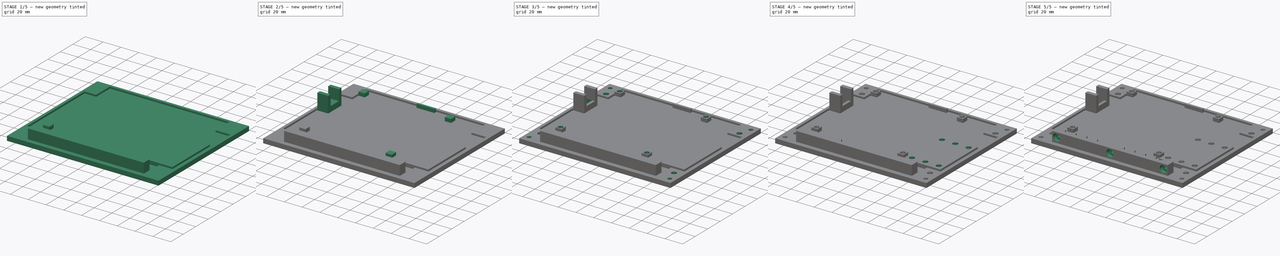
[diagram: build sequence overview — one tinted view per stage of 5, left to right]
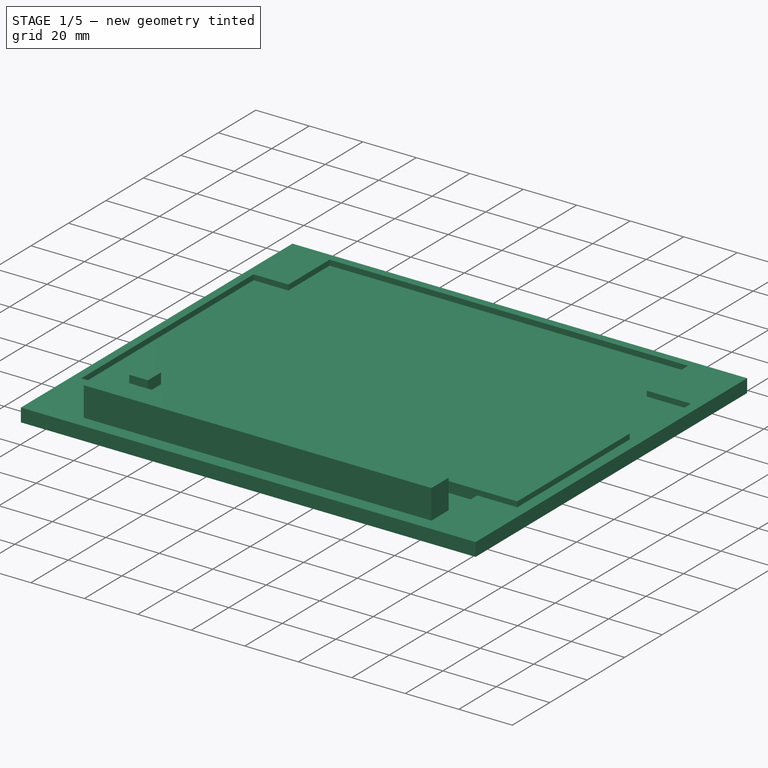
[diagram: stage 1 of 5 — iso view after this stage's code; geometry added in this stage tinted green]
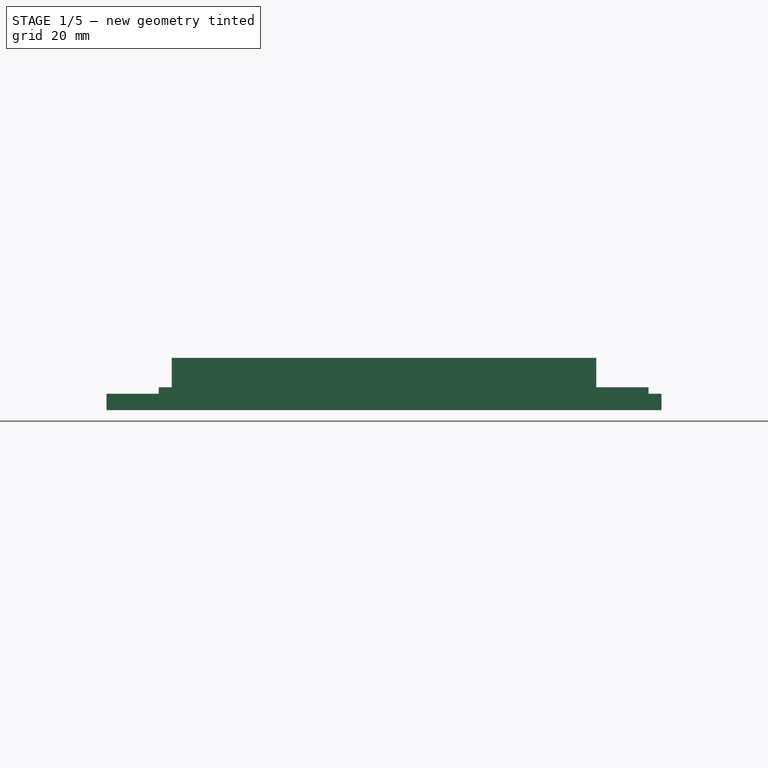
[diagram: stage 1 of 5 — front view after this stage's code; geometry added in this stage tinted green]
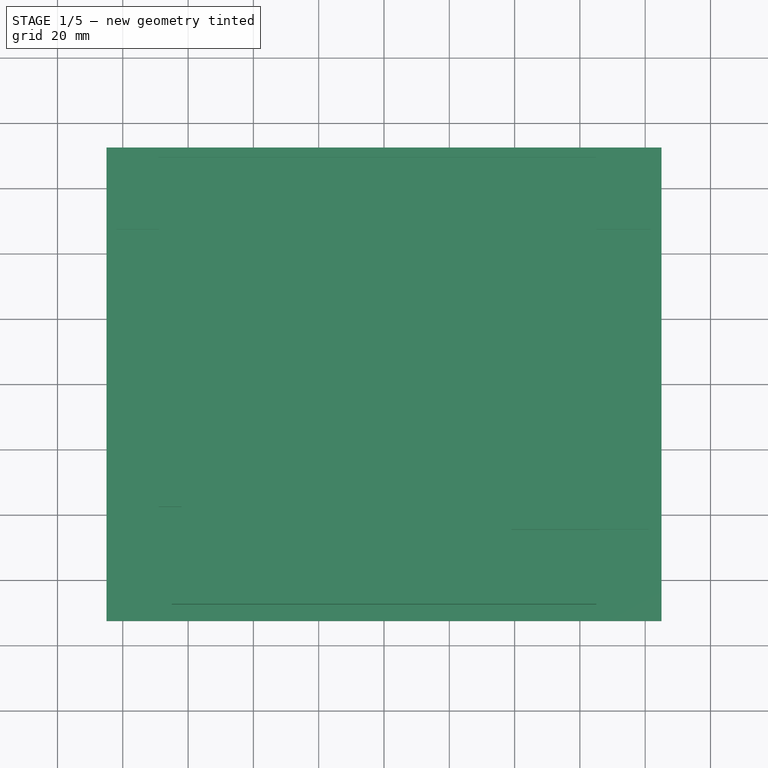
[diagram: stage 1 of 5 — top view after this stage's code; geometry added in this stage tinted green]
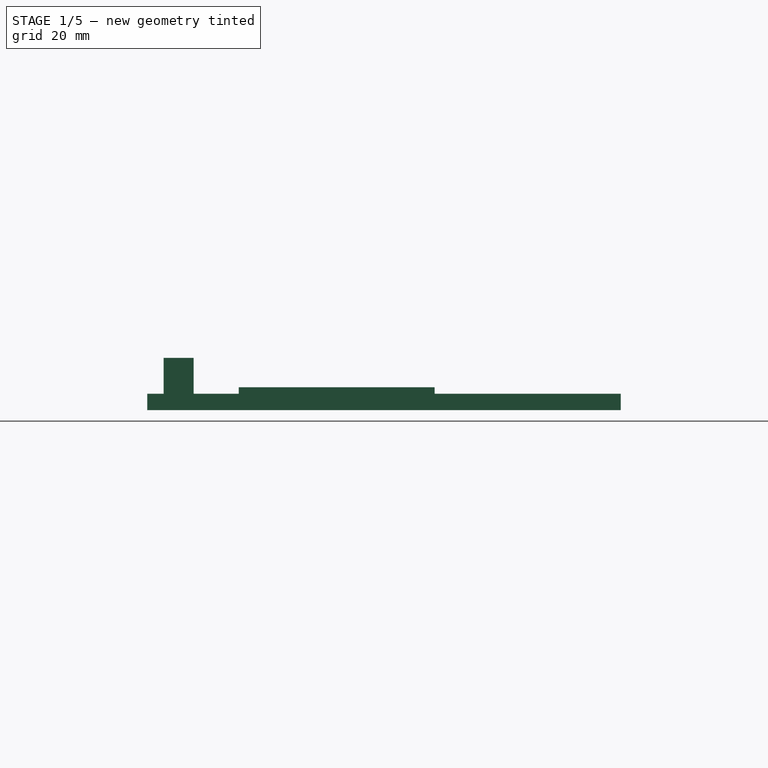
[diagram: stage 1 of 5 — right view after this stage's code; geometry added in this stage tinted green]
FCSTD DOCUMENT
Label: ElectronicEnclosureBottom_unfinished
objects: Sketcher::SketchObject×17, PartDesign::Pocket×9, PartDesign::LinearPattern×9, PartDesign::Pad×8, PartDesign::MultiTransform×6, PartDesign::Mirrored×5, Part::Feature×1
note: 72 computed .brp shape members not serialized (recipe doc carries the construction recipe); baked Part::Feature solids carry a one-line shape summary decoded from their .brp

FEATURE [Sketcher::SketchObject] Sketch
  sketch-geometry (5):
    g0: LineSegment StartX=-85 StartY=-72.5 StartZ=0 EndX=85 EndY=-72.5 EndZ=0
    g1: LineSegment StartX=85 StartY=-72.5 StartZ=0 EndX=85 EndY=72.5 EndZ=0
    g2: LineSegment StartX=85 StartY=72.5 StartZ=0 EndX=-85 EndY=72.5 EndZ=0
    g3: LineSegment StartX=-85 StartY=72.5 StartZ=0 EndX=-85 EndY=-72.5 EndZ=0
    g4: GeomPoint [constr] X=0 Y=0 Z=0
  constraints (12):
    c: Coincident(g0,g1)
    c: Coincident(g1,g2)
    c: Coincident(g2,g3)
    c: Coincident(g3,g0)
    c: Horizontal(g0)
    c: Horizontal(g2)
    c: Vertical(g1)
    c: Vertical(g3)
    c: Symmetric(g0,g1,g4)
    c: Coincident(g4,g-1)
    c: DistanceX(g2) = -170
    c: DistanceY(g1) = 145
FEATURE [PartDesign::Pad] Pad
  Length = 5
  Length2 = 100
  Sketch = -> Sketch
  Type = 0
FEATURE [Sketcher::SketchObject] Sketch001
  ExternalGeometry = -> [Pad]
  Placement = pos=(0,0,5) rot=(0,0,1;0rad)
  Support = -> Pad [Face6]
  sketch-geometry (4):
    g0: LineSegment StartX=39 StartY=15.5 StartZ=0 EndX=81 EndY=15.5 EndZ=0
    g1: LineSegment StartX=81 StartY=15.5 StartZ=0 EndX=81 EndY=-44.5 EndZ=0
    g2: LineSegment StartX=81 StartY=-44.5 StartZ=0 EndX=39 EndY=-44.5 EndZ=0
    g3: LineSegment StartX=39 StartY=-44.5 StartZ=0 EndX=39 EndY=15.5 EndZ=0
  constraints (12):
    c: Coincident(g0,g1)
    c: Coincident(g1,g2)
    c: Coincident(g2,g3)
    c: Coincident(g3,g0)
    c: Horizontal(g0)
    c: Horizontal(g2)
    c: Vertical(g1)
    c: Vertical(g3)
    c: DistanceY(g1) = -60
    c: DistanceX(g2) = -42
    c: DistanceY(g1,g-3) = -28
    c: DistanceX(g1,g-3) = 4
FEATURE [PartDesign::Pad] Pad001
  Length = 2
  Length2 = 100
  Sketch = -> Sketch001
  Type = 0
FEATURE [Sketcher::SketchObject] Sketch002
  ExternalGeometry = -> [Pad001]
  Placement = pos=(0,0,5) rot=(0,0,1;0rad)
  Support = -> Pad001 [Face5]
  sketch-geometry (14):
    g0: LineSegment StartX=-69 StartY=69.5 StartZ=0 EndX=65 EndY=69.5 EndZ=0
    g1: LineSegment StartX=81.5 StartY=47.5 StartZ=0 EndX=81.5 EndY=15.5 EndZ=0
    g2: LineSegment StartX=66 StartY=-58.3 StartZ=0 EndX=-66 EndY=-58.3 EndZ=0
    g3: LineSegment StartX=-82 StartY=-44.5 StartZ=0 EndX=-82 EndY=47.5 EndZ=0
    g4: LineSegment StartX=-69 StartY=69.5 StartZ=0 EndX=-69 EndY=47.5 EndZ=0
    g5: LineSegment StartX=-69 StartY=47.5 StartZ=0 EndX=-82 EndY=47.5 EndZ=0
    g6: LineSegment StartX=81.5 StartY=47.5 StartZ=0 EndX=65 EndY=47.5 EndZ=0
    g7: LineSegment StartX=65 StartY=47.5 StartZ=0 EndX=65 EndY=69.5 EndZ=0
    g8: LineSegment StartX=-82 StartY=-44.5 StartZ=0 EndX=-66 EndY=-44.5 EndZ=0
    g9: LineSegment StartX=-66 StartY=-44.5 StartZ=0 EndX=-66 EndY=-58.3 EndZ=0
    g10: LineSegment StartX=66 StartY=-44.5 StartZ=0 EndX=39 EndY=-44.5 EndZ=0
    g11: LineSegment StartX=66 StartY=-58.3 StartZ=0 EndX=66 EndY=-44.5 EndZ=0
    g12: LineSegment StartX=81.5 StartY=15.5 StartZ=0 EndX=39 EndY=15.5 EndZ=0
    g13: LineSegment StartX=39 StartY=15.5 StartZ=0 EndX=39 EndY=-44.5 EndZ=0
  constraints (41):
    c: Horizontal(g0)
    c: Horizontal(g2)
    c: Vertical(g1)
    c: Vertical(g3)
    c: Coincident(g4,g5)
    c: Horizontal(g5)
    c: Vertical(g4)
    c: Coincident(g6,g7)
    c: Horizontal(g6)
    c: Vertical(g7)
    c: Coincident(g8,g9)
    c: Horizontal(g8)
    c: Vertical(g9)
    c: Coincident(g11,g10)
    c: Vertical(g11)
    c: Coincident(g0,g4)
    c: Coincident(g3,g5)
    c: Coincident(g3,g8)
    c: Coincident(g9,g2)
    c: Coincident(g2,g11)
    c: Coincident(g6,g1)
    c: Coincident(g0,g7)
    c: Symmetric(g2,g2,g-2)
    c: DistanceY(g2,g-4) = -14.2
    c: DistanceX(g2,g-4) = -19
    c: DistanceX(g0,g-3) = -16
    c: DistanceX(g3,g-3) = -3
    c: DistanceX(g1,g-4) = 3.5
    c: Equal(g11,g9)
    c: Equal(g4,g7)
    c: DistanceY(g4,g-3) = 25
    c: DistanceY(g-4,g3) = 28
    c: DistanceY(g0,g-3) = 3
    c: Coincident(g1,g12)
    c: Coincident(g12,g-5)
    c: Horizontal(g12)
    c: Coincident(g12,g13)
    c: Vertical(g13)
    c: Coincident(g10,g13)
    c: Horizontal(g10)
    c: DistanceX(g-4,g0) = -20
FEATURE [PartDesign::Pocket] Pocket
  Length = 2
  Sketch = -> Sketch002
  Type = 0
FEATURE [Sketcher::SketchObject] Sketch003
  ExternalGeometry = -> [Pocket]
  Placement = pos=(0,0,5) rot=(0,0,1;0rad)
  Support = -> Pocket [Face5]
  sketch-geometry (4):
    g0: LineSegment StartX=-65 StartY=-58.3 StartZ=0 EndX=65 EndY=-58.3 EndZ=0
    g1: LineSegment StartX=65 StartY=-58.3 StartZ=0 EndX=65 EndY=-67.5 EndZ=0
    g2: LineSegment StartX=65 StartY=-67.5 StartZ=0 EndX=-65 EndY=-67.5 EndZ=0
    g3: LineSegment StartX=-65 StartY=-67.5 StartZ=0 EndX=-65 EndY=-58.3 EndZ=0
  constraints (12):
    c: Coincident(g0,g1)
    c: Coincident(g1,g2)
    c: Coincident(g2,g3)
    c: Coincident(g3,g0)
    c: Horizontal(g0)
    c: Horizontal(g2)
    c: Vertical(g1)
    c: Vertical(g3)
    c: DistanceY(g3) = 9.2
    c: DistanceX(g2) = -130
    c: Symmetric(g2,g1,g-2)
    c: PointOnObject(g-3,g0)
FEATURE [PartDesign::Pad] Pad002
  Length = 11
  Length2 = 100
  Sketch = -> Sketch003
  Type = 0
FEATURE [Sketcher::SketchObject] Sketch004
  ExternalGeometry = -> [Pad002]
  Placement = pos=(0,0,3) rot=(0,0,1;0rad)
  Support = -> Pad002 [Face28]
  sketch-geometry (4):
    g0: LineSegment StartX=-69 StartY=-37.5 StartZ=0 EndX=-62 EndY=-37.5 EndZ=0
    g1: LineSegment StartX=-62 StartY=-37.5 StartZ=0 EndX=-62 EndY=-30.5 EndZ=0
    g2: LineSegment StartX=-62 StartY=-30.5 StartZ=0 EndX=-69 EndY=-30.5 EndZ=0
    g3: LineSegment StartX=-69 StartY=-30.5 StartZ=0 EndX=-69 EndY=-37.5 EndZ=0
  constraints (12):
    c: Coincident(g0,g1)
    c: Coincident(g1,g2)
    c: Coincident(g2,g3)
    c: Coincident(g3,g0)
    c: Horizontal(g0)
    c: Horizontal(g2)
    c: Vertical(g1)
    c: Vertical(g3)
    c: Equal(g3,g2)
    c: DistanceY(g1) = 7
    c: DistanceY(g-3,g0) = 35
    c: DistanceX(g0,g-3) = -16
FEATURE [PartDesign::Pad] Pad003
  Length = 4
  Length2 = 100
  Sketch = -> Sketch004
  Type = 0
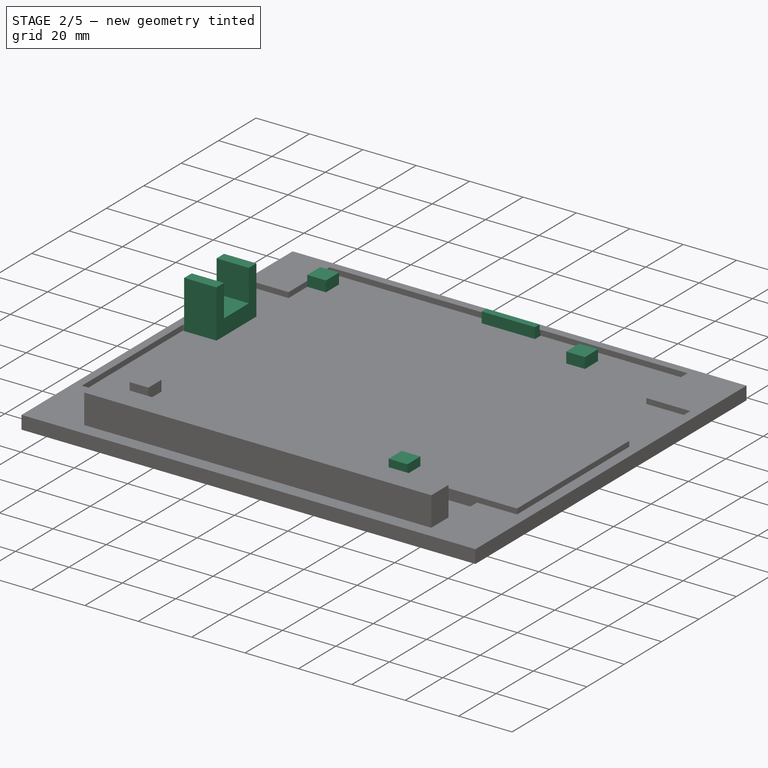
[diagram: stage 2 of 5 — iso view after this stage's code; geometry added in this stage tinted green]
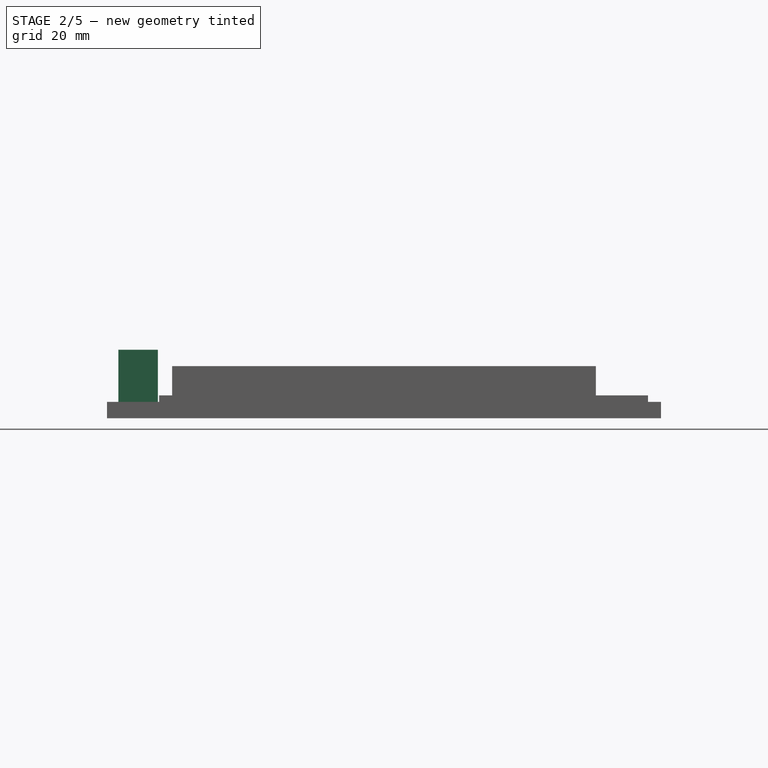
[diagram: stage 2 of 5 — front view after this stage's code; geometry added in this stage tinted green]
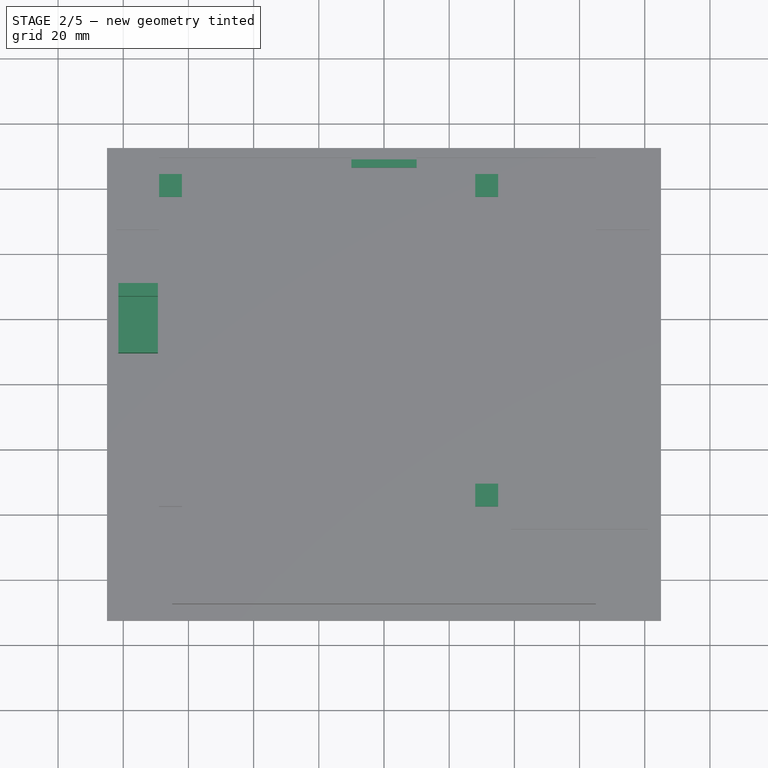
[diagram: stage 2 of 5 — top view after this stage's code; geometry added in this stage tinted green]
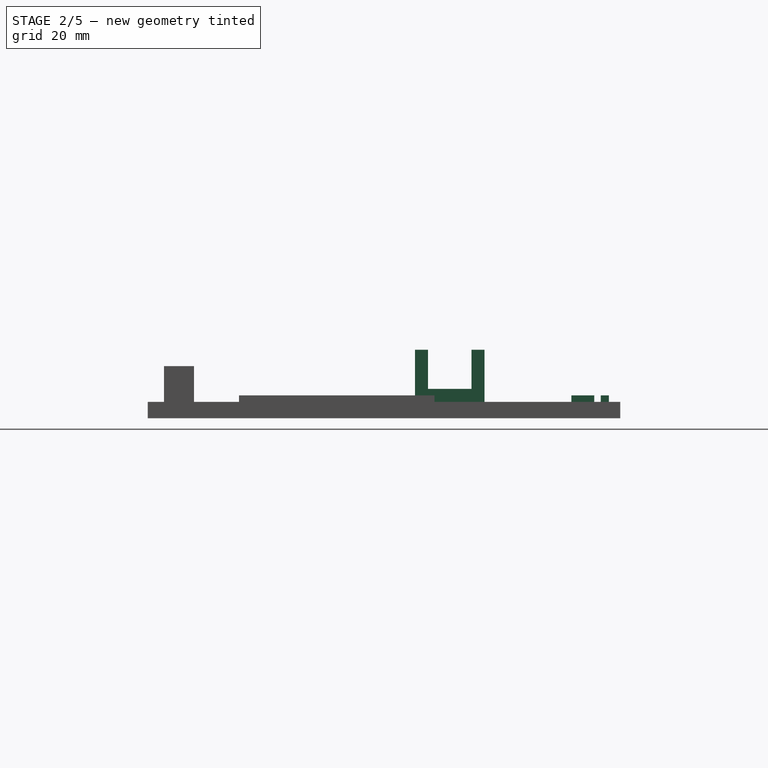
[diagram: stage 2 of 5 — right view after this stage's code; geometry added in this stage tinted green]
FEATURE [PartDesign::LinearPattern] LinearPattern
  Direction = -> Pad003 [Edge27]
  Length = 95
  Occurrences = 2
FEATURE [PartDesign::LinearPattern] LinearPattern001
  Length = 97
  Occurrences = 2
  StdDirection = X
FEATURE [PartDesign::MultiTransform] MultiTransform
  Originals = -> [Pad003]
  Transformations = -> [LinearPattern,LinearPattern001]
FEATURE [Sketcher::SketchObject] Sketch005
  ExternalGeometry = -> [MultiTransform]
  Placement = pos=(0,0,5) rot=(0,0,1;0rad)
  Support = -> MultiTransform [Face5]
  sketch-geometry (4):
    g0: LineSegment StartX=-10 StartY=69.5 StartZ=0 EndX=10 EndY=69.5 EndZ=0
    g1: LineSegment StartX=10 StartY=69.5 StartZ=0 EndX=10 EndY=66.5 EndZ=0
    g2: LineSegment StartX=10 StartY=66.5 StartZ=0 EndX=-10 EndY=66.5 EndZ=0
    g3: LineSegment StartX=-10 StartY=66.5 StartZ=0 EndX=-10 EndY=69.5 EndZ=0
  constraints (12):
    c: Coincident(g0,g1)
    c: Coincident(g1,g2)
    c: Coincident(g2,g3)
    c: Coincident(g3,g0)
    c: Horizontal(g0)
    c: Horizontal(g2)
    c: Vertical(g1)
    c: Vertical(g3)
    c: Symmetric(g2,g1,g-2)
    c: DistanceY(g3) = 3
    c: DistanceX(g2) = -20
    c: PointOnObject(g0,g-3)
FEATURE [PartDesign::Pad] Pad004
  Length = 10
  Length2 = 100
  Reversed = true
  Sketch = -> Sketch005
  Type = 1
FEATURE [Sketcher::SketchObject] Sketch006
  ExternalGeometry = -> [Pad004]
  Placement = pos=(0,0,5) rot=(0,0,1;0rad)
  Support = -> Pad004 [Face18]
  sketch-geometry (4):
    g0: LineSegment StartX=-10 StartY=66.5 StartZ=0 EndX=10 EndY=66.5 EndZ=0
    g1: LineSegment StartX=10 StartY=66.5 StartZ=0 EndX=10 EndY=69 EndZ=0
    g2: LineSegment StartX=10 StartY=69 StartZ=0 EndX=-10 EndY=69 EndZ=0
    g3: LineSegment StartX=-10 StartY=69 StartZ=0 EndX=-10 EndY=66.5 EndZ=0
  constraints (11):
    c: Coincident(g0,g1)
    c: Coincident(g1,g2)
    c: Coincident(g2,g3)
    c: Coincident(g3,g0)
    c: Horizontal(g0)
    c: Horizontal(g2)
    c: Vertical(g1)
    c: Vertical(g3)
    c: Symmetric(g0,g0,g-2)
    c: Coincident(g0,g-3)
    c: DistanceY(g1) = 2.5
FEATURE [PartDesign::Pad] Pad005
  Length = 2
  Length2 = 100
  Sketch = -> Sketch006
  Type = 0
FEATURE [Sketcher::SketchObject] Sketch007
  ExternalGeometry = -> [Pad005]
  Placement = pos=(0,0,5) rot=(0,0,1;0rad)
  Support = -> Pad005 [Face5]
  sketch-geometry (4):
    g0: LineSegment StartX=-82 StartY=30.83 StartZ=0 EndX=-81.5 EndY=30.83 EndZ=0
    g1: LineSegment StartX=-81.5 StartY=30.83 StartZ=0 EndX=-81.5 EndY=9.5 EndZ=0
    g2: LineSegment StartX=-81.5 StartY=9.5 StartZ=0 EndX=-82 EndY=9.5 EndZ=0
    g3: LineSegment StartX=-82 StartY=9.5 StartZ=0 EndX=-82 EndY=30.83 EndZ=0
  constraints (12):
    c: Coincident(g0,g1)
    c: Coincident(g1,g2)
    c: Coincident(g2,g3)
    c: Coincident(g3,g0)
    c: Horizontal(g0)
    c: Horizontal(g2)
    c: Vertical(g1)
    c: Vertical(g3)
    c: PointOnObject(g0,g-3)
    c: DistanceX(g0) = 0.5
    c: DistanceY(g1) = -21.33
    c: DistanceY(g0,g-3) = 16.67
FEATURE [PartDesign::Pad] Pad006
  Length = 10
  Length2 = 100
  Reversed = true
  Sketch = -> Sketch007
  Type = 1
FEATURE [Sketcher::SketchObject] Sketch008
  ExternalGeometry = -> [Pad006]
  Placement = pos=(-81.5,0,0) rot=(0.57735,0.57735,0.57735;2.0944rad)
  Support = -> Pad006 [Face46]
  sketch-geometry (8):
    g0: LineSegment StartX=9.5 StartY=3 StartZ=0 EndX=30.83 EndY=3 EndZ=0
    g1: LineSegment StartX=13.5 StartY=9 StartZ=0 EndX=13.5 EndY=21 EndZ=0
    g2: LineSegment StartX=13.5 StartY=21 StartZ=0 EndX=9.5 EndY=21 EndZ=0
    g3: LineSegment StartX=9.5 StartY=21 StartZ=0 EndX=9.5 EndY=3 EndZ=0
    g4: LineSegment StartX=26.83 StartY=9 StartZ=0 EndX=26.83 EndY=21 EndZ=0
    g5: LineSegment StartX=26.83 StartY=21 StartZ=0 EndX=30.83 EndY=21 EndZ=0
    g6: LineSegment StartX=30.83 StartY=21 StartZ=0 EndX=30.83 EndY=3 EndZ=0
    g7: LineSegment StartX=13.5 StartY=9 StartZ=0 EndX=26.83 EndY=9 EndZ=0
  constraints (23):
    c: Coincident(g1,g2)
    c: Coincident(g2,g3)
    c: Coincident(g3,g0)
    c: Horizontal(g0)
    c: Horizontal(g2)
    c: Vertical(g1)
    c: Vertical(g3)
    c: Coincident(g4,g5)
    c: Coincident(g5,g6)
    c: Horizontal(g5)
    c: Vertical(g4)
    c: Vertical(g6)
    c: Equal(g2,g5)
    c: DistanceX(g2) = -4
    c: DistanceY(g6) = -18
    c: Coincident(g6,g0)
    c: Coincident(g7,g1)
    c: Coincident(g7,g4)
    c: Horizontal(g7)
    c: Equal(g3,g6)
    c: Coincident(g0,g-3)
    c: Coincident(g0,g-4)
    c: DistanceY(g1,g0) = -6
FEATURE [PartDesign::Pad] Pad007
  Length = 12.1
  Length2 = 100
  Sketch = -> Sketch008
  Type = 0
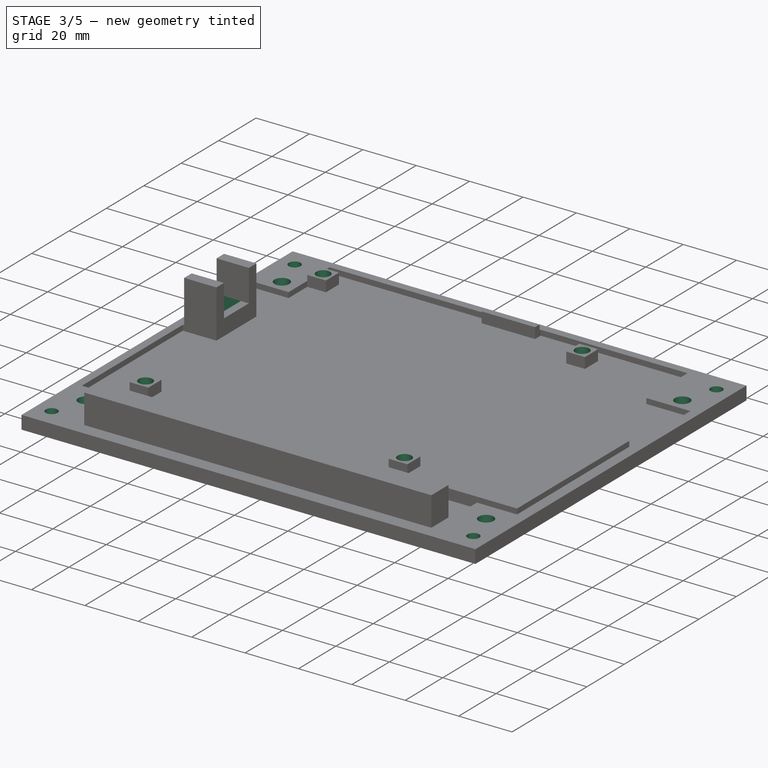
[diagram: stage 3 of 5 — iso view after this stage's code; geometry added in this stage tinted green]
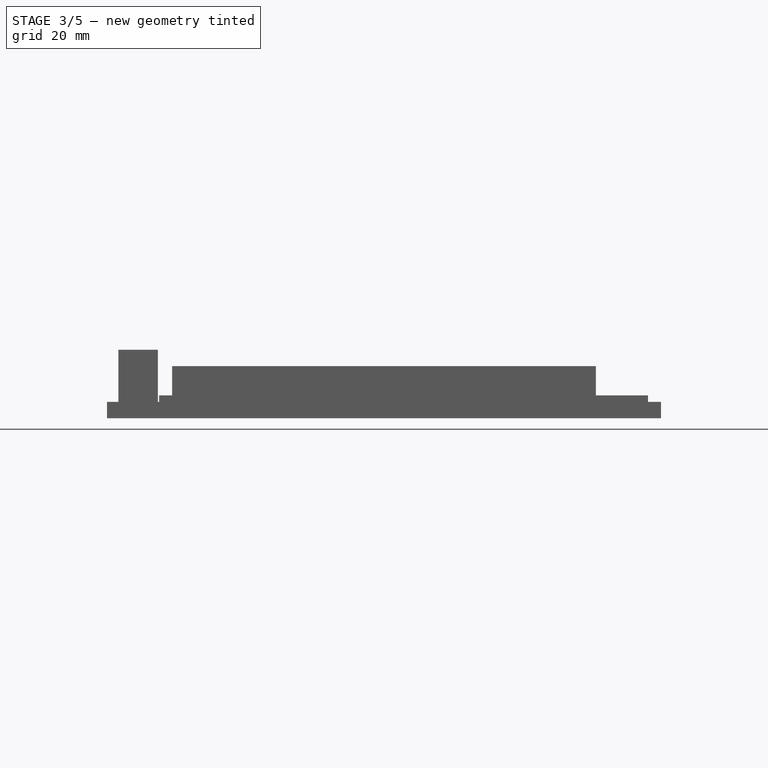
[diagram: stage 3 of 5 — front view after this stage's code; geometry added in this stage tinted green]
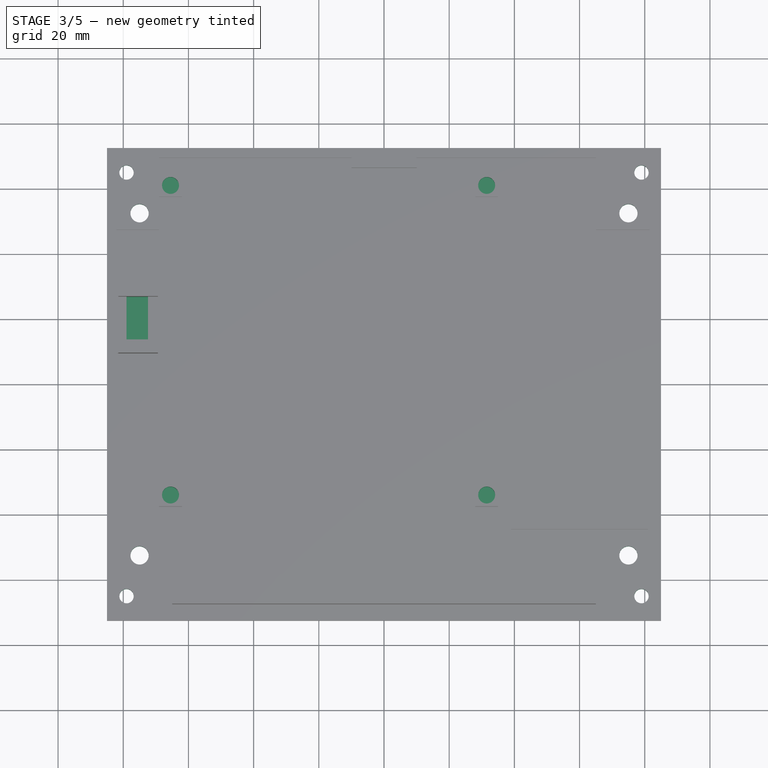
[diagram: stage 3 of 5 — top view after this stage's code; geometry added in this stage tinted green]
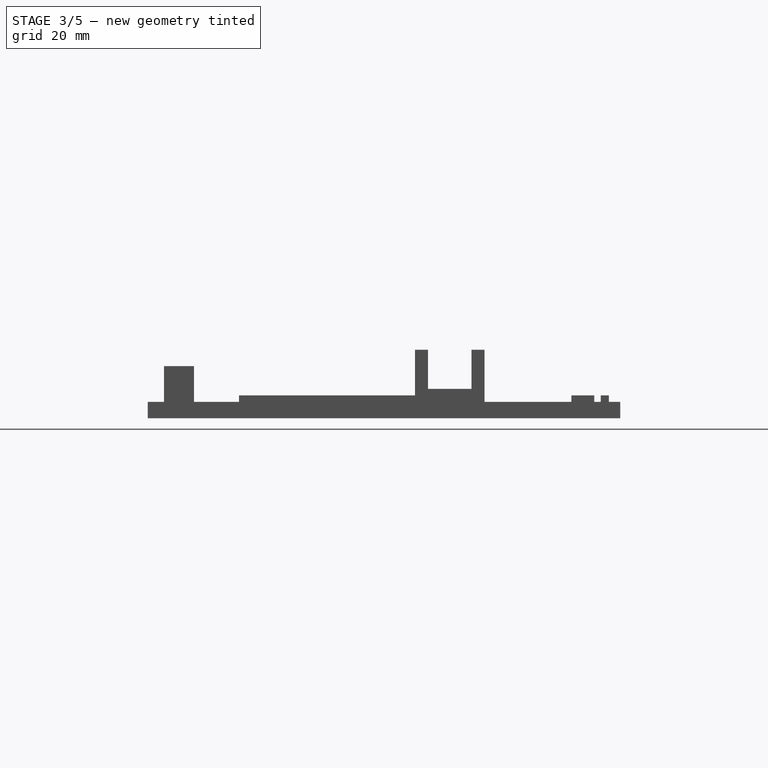
[diagram: stage 3 of 5 — right view after this stage's code; geometry added in this stage tinted green]
FEATURE [Sketcher::SketchObject] Sketch009
  ExternalGeometry = -> [Pad007]
  Placement = pos=(0,0,9) rot=(0,0,1;0rad)
  Support = -> Pad007 [Face71]
  sketch-geometry (4):
    g0: LineSegment StartX=-79 StartY=13.5 StartZ=0 EndX=-72.4 EndY=13.5 EndZ=0
    g1: LineSegment StartX=-72.4 StartY=13.5 StartZ=0 EndX=-72.4 EndY=26.83 EndZ=0
    g2: LineSegment StartX=-72.4 StartY=26.83 StartZ=0 EndX=-79 EndY=26.83 EndZ=0
    g3: LineSegment StartX=-79 StartY=26.83 StartZ=0 EndX=-79 EndY=13.5 EndZ=0
  constraints (12):
    c: Coincident(g0,g1)
    c: Coincident(g1,g2)
    c: Coincident(g2,g3)
    c: Coincident(g3,g0)
    c: Horizontal(g0)
    c: Horizontal(g2)
    c: Vertical(g1)
    c: Vertical(g3)
    c: PointOnObject(g-3,g2)
    c: PointOnObject(g-3,g0)
    c: DistanceX(g2,g-3) = -2.5
    c: DistanceX(g1,g-4) = 3
FEATURE [PartDesign::Pocket] Pocket001
  Length = 6
  Sketch = -> Sketch009
  Type = 0
  UpToFace = -> Pad007 [Face32]
FEATURE [Sketcher::SketchObject] Sketch010
  ExternalGeometry = -> [Pocket001]
  Placement = pos=(0,0,7) rot=(0,0,1;0rad)
  Support = -> Pocket001 [Face74]
  sketch-geometry (1):
    g0: Circle CenterX=-65.5 CenterY=-34 CenterZ=0 NormalX=0 NormalY=0 NormalZ=1 Radius=2.6
  constraints (2):
    c: Symmetric(g-3,g-4,g0)
    c: Radius(g0) = 2.6
FEATURE [PartDesign::Pocket] Pocket002
  Length = 6
  Sketch = -> Sketch010
  Type = 0
FEATURE [PartDesign::LinearPattern] LinearPattern002
  Direction = -> Pocket002 [Edge32]
  Length = 95
  Occurrences = 2
FEATURE [PartDesign::LinearPattern] LinearPattern003
  Length = 97
  Occurrences = 2
  StdDirection = X
FEATURE [PartDesign::MultiTransform] MultiTransform001
  Originals = -> [Pocket002]
  Transformations = -> [LinearPattern002,LinearPattern003]
FEATURE [Sketcher::SketchObject] Sketch011
  ExternalGeometry = -> [MultiTransform001]
  Placement = pos=(0,0,0) rot=(1,0,0;3.14159rad)
  Support = -> MultiTransform001 [Face4]
  sketch-geometry (2):
    g0: Circle CenterX=-79 CenterY=65 CenterZ=0 NormalX=0 NormalY=0 NormalZ=1 Radius=2.2
    g1: Circle CenterX=-75 CenterY=52.5 CenterZ=0 NormalX=0 NormalY=0 NormalZ=1 Radius=2.8
  constraints (6):
    c: Radius(g0) = 2.2
    c: Radius(g1) = 2.8
    c: DistanceY(g-3,g0) = -7.5
    c: DistanceX(g0,g-3) = -6
    c: DistanceY(g-3,g1) = -20
    c: DistanceX(g1,g-3) = -10
FEATURE [PartDesign::Pocket] Pocket003
  Length = 5
  Sketch = -> Sketch011
  Type = 1
FEATURE [PartDesign::Mirrored] Mirrored
  StdMirrorPlane = XZ
FEATURE [PartDesign::Mirrored] Mirrored001
  StdMirrorPlane = YZ
FEATURE [PartDesign::MultiTransform] MultiTransform002
  Originals = -> [Pocket003]
  Transformations = -> [Mirrored,Mirrored001]
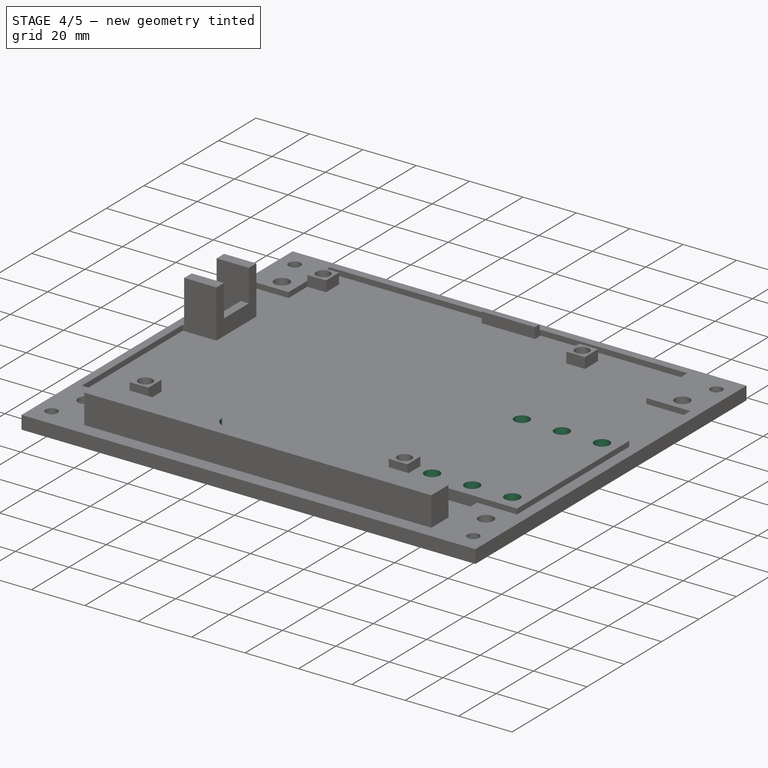
[diagram: stage 4 of 5 — iso view after this stage's code; geometry added in this stage tinted green]
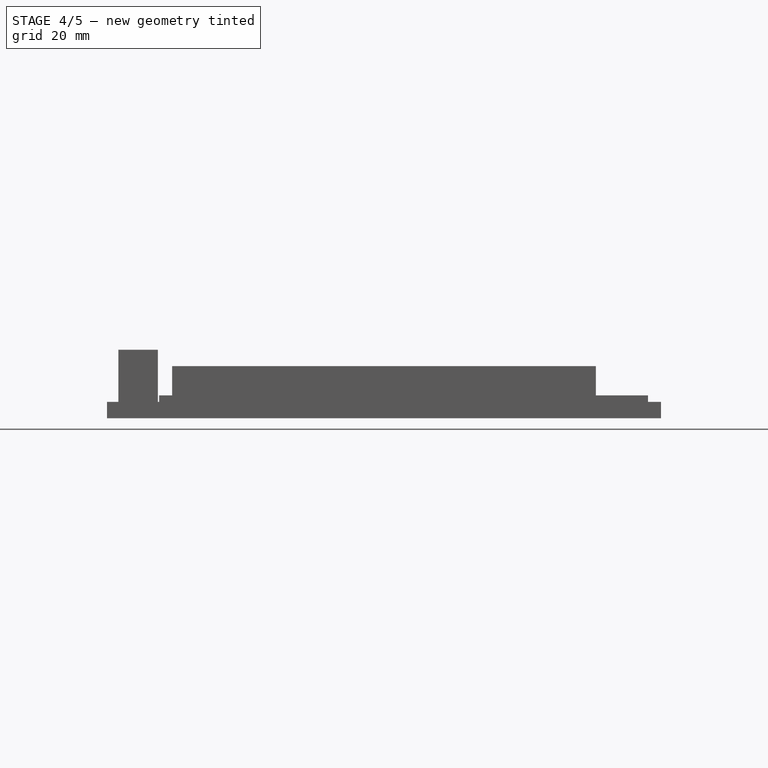
[diagram: stage 4 of 5 — front view after this stage's code; geometry added in this stage tinted green]
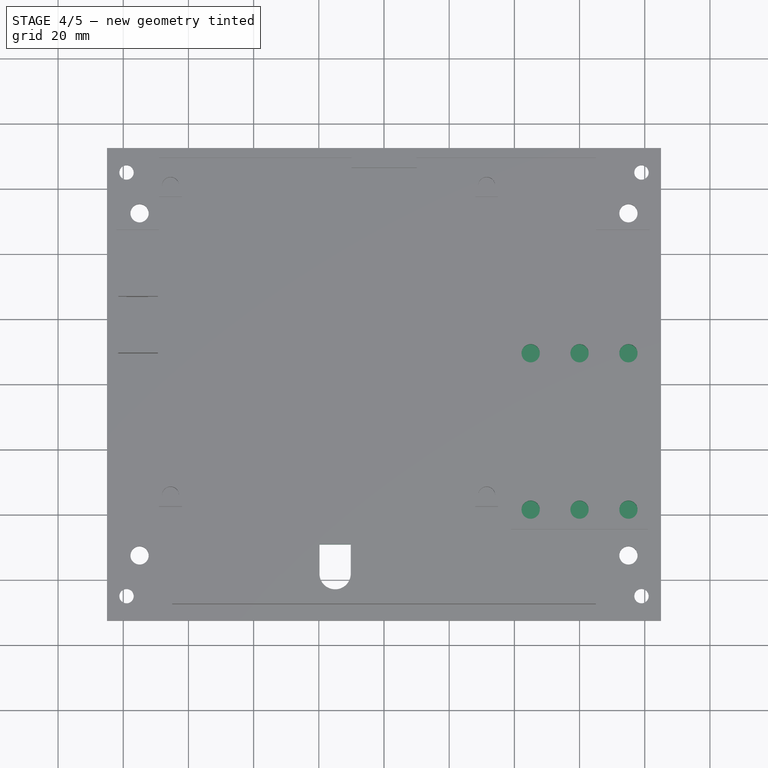
[diagram: stage 4 of 5 — top view after this stage's code; geometry added in this stage tinted green]
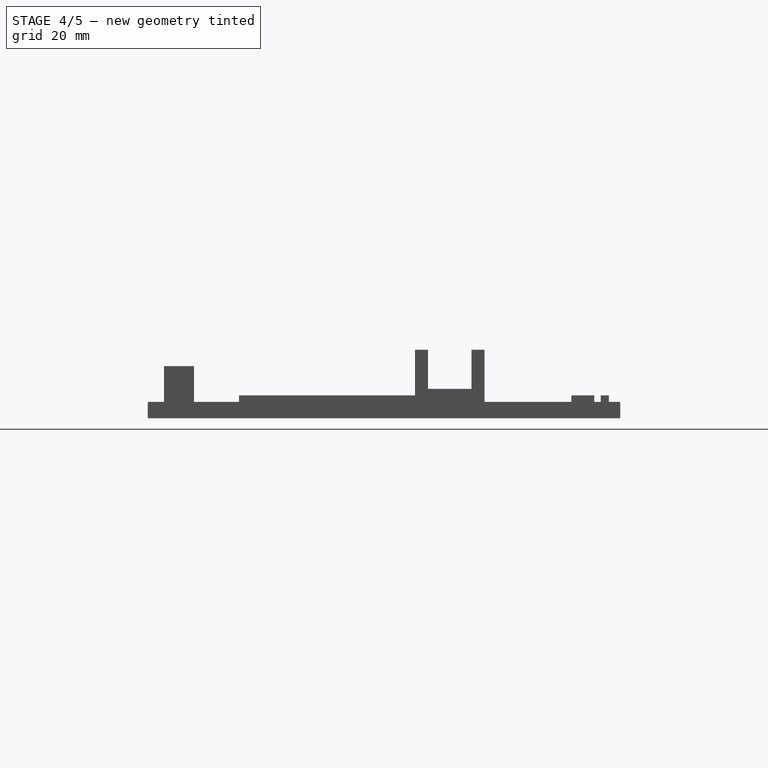
[diagram: stage 4 of 5 — right view after this stage's code; geometry added in this stage tinted green]
FEATURE [Sketcher::SketchObject] Sketch012
  ExternalGeometry = -> [MultiTransform002]
  Placement = pos=(0,0,0) rot=(1,0,0;3.14159rad)
  Support = -> MultiTransform002 [Face4]
  sketch-geometry (1):
    g0: Circle CenterX=-79 CenterY=65 CenterZ=0 NormalX=0 NormalY=0 NormalZ=1 Radius=4
  constraints (2):
    c: Coincident(g0,g-3)
    c: Radius(g0) = 4
FEATURE [PartDesign::Pocket] Pocket004
  Length = 3.2
  Sketch = -> Sketch012
  Type = 0
FEATURE [PartDesign::Mirrored] Mirrored002
  StdMirrorPlane = XZ
FEATURE [PartDesign::Mirrored] Mirrored003
  StdMirrorPlane = YZ
FEATURE [PartDesign::MultiTransform] MultiTransform003
  Originals = -> [Pocket004]
  Transformations = -> [Mirrored002,Mirrored003]
FEATURE [Sketcher::SketchObject] Sketch013
  ExternalGeometry = -> [MultiTransform003]
  Placement = pos=(0,0,7) rot=(0,0,1;0rad)
  Support = -> MultiTransform003 [Face47]
  sketch-geometry (1):
    g0: Circle CenterX=75 CenterY=-38.5 CenterZ=0 NormalX=0 NormalY=0 NormalZ=1 Radius=2.8
  constraints (3):
    c: Radius(g0) = 2.8
    c: DistanceY(g0,g-3) = -6
    c: DistanceX(g0,g-3) = 6
FEATURE [PartDesign::Pocket] Pocket005
  Length = 6
  Sketch = -> Sketch013
  Type = 0
FEATURE [PartDesign::LinearPattern] LinearPattern004
  Direction = -> Pocket005 [Edge92]
  Length = 30
  Occurrences = 3
FEATURE [PartDesign::LinearPattern] LinearPattern005
  Direction = -> Pocket005 [Edge86]
  Length = 48
  Occurrences = 2
  Reversed = true
FEATURE [PartDesign::MultiTransform] MultiTransform004
  Originals = -> [Pocket005]
  Transformations = -> [LinearPattern004,LinearPattern005]
FEATURE [Sketcher::SketchObject] Sketch014
  ExternalGeometry = -> [MultiTransform004]
  Placement = pos=(0,0,16) rot=(0,0,1;0rad)
  Support = -> MultiTransform004 [Face53]
  sketch-geometry (4):
    g0: LineSegment StartX=-19.8 StartY=-49.1 StartZ=0 EndX=-10.2 EndY=-49.1 EndZ=0
    g1: LineSegment StartX=-10.2 StartY=-49.1 StartZ=0 EndX=-10.2 EndY=-58.3 EndZ=0
    g2: LineSegment StartX=-19.8 StartY=-58.3 StartZ=0 EndX=-19.8 EndY=-49.1 EndZ=0
    g3: ArcOfCircle CenterX=-15 CenterY=-58.3 CenterZ=0 NormalX=0 NormalY=0 NormalZ=1 Radius=4.8 StartAngle=3.14159 EndAngle=6.28319
  constraints (13):
    c: Coincident(g0,g1)
    c: Coincident(g2,g0)
    c: Horizontal(g0)
    c: Vertical(g1)
    c: Vertical(g2)
    c: Coincident(g3,g2)
    c: Coincident(g3,g1)
    c: Tangent(g3,g2)
    c: Tangent(g3,g1)
    c: Radius(g3) = 4.8
    c: DistanceY(g2) = 9.2
    c: DistanceX(g3) = -15
    c: PointOnObject(g3,g-3)
FEATURE [PartDesign::Pocket] Pocket006
  Length = 5
  Sketch = -> Sketch014
  Type = 1
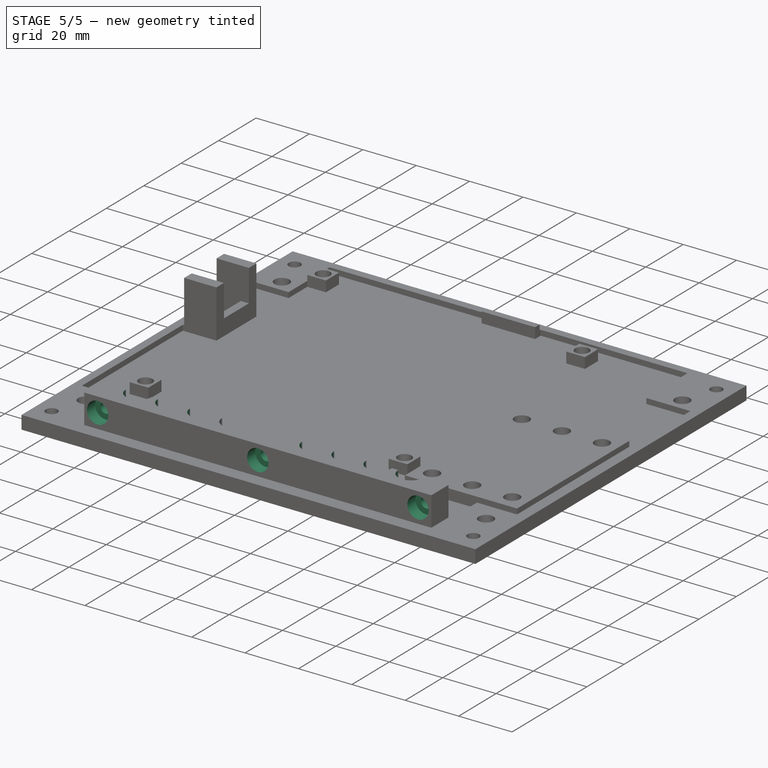
[diagram: stage 5 of 5 — iso view after this stage's code; geometry added in this stage tinted green]
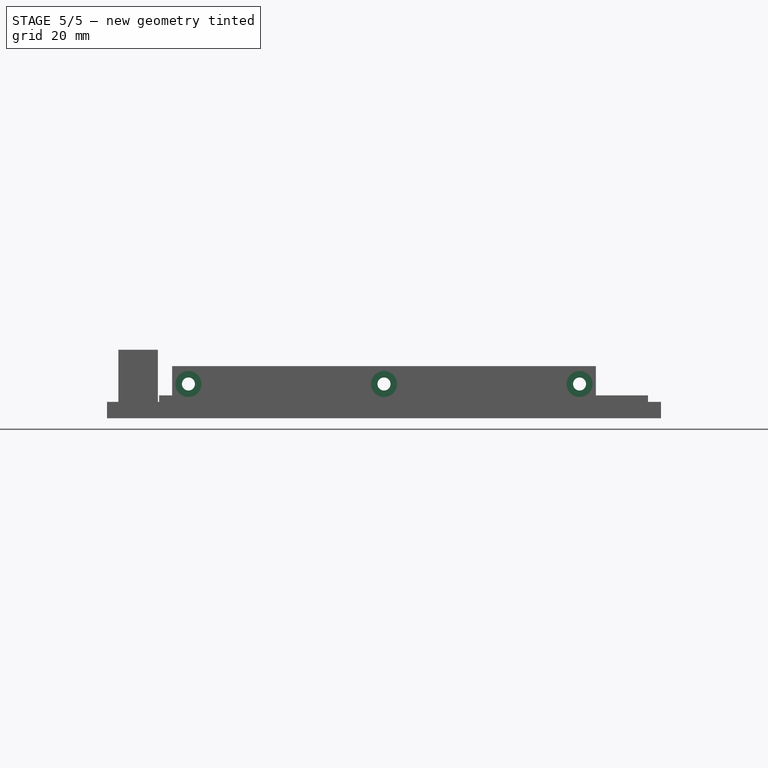
[diagram: stage 5 of 5 — front view after this stage's code; geometry added in this stage tinted green]
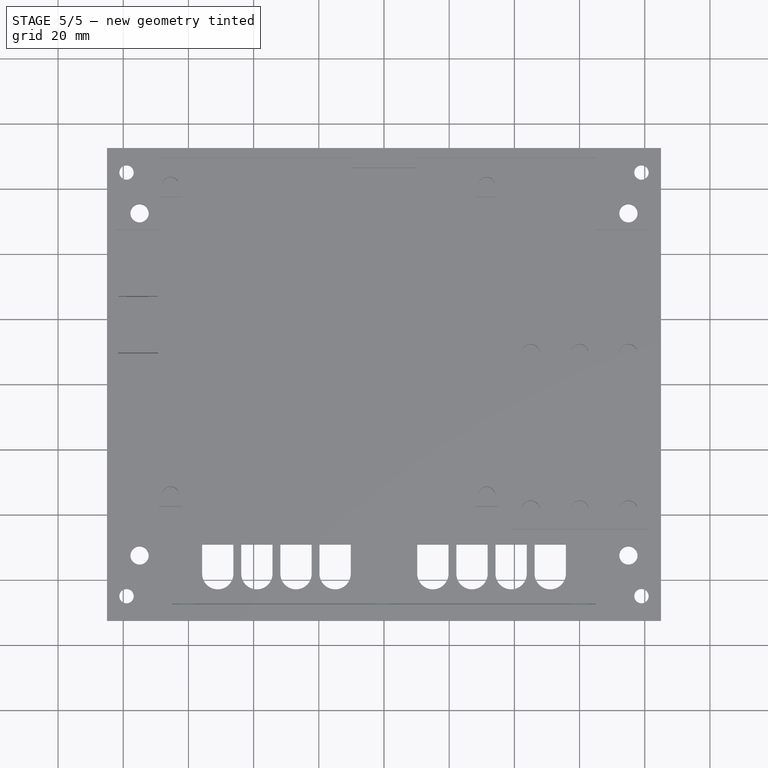
[diagram: stage 5 of 5 — top view after this stage's code; geometry added in this stage tinted green]
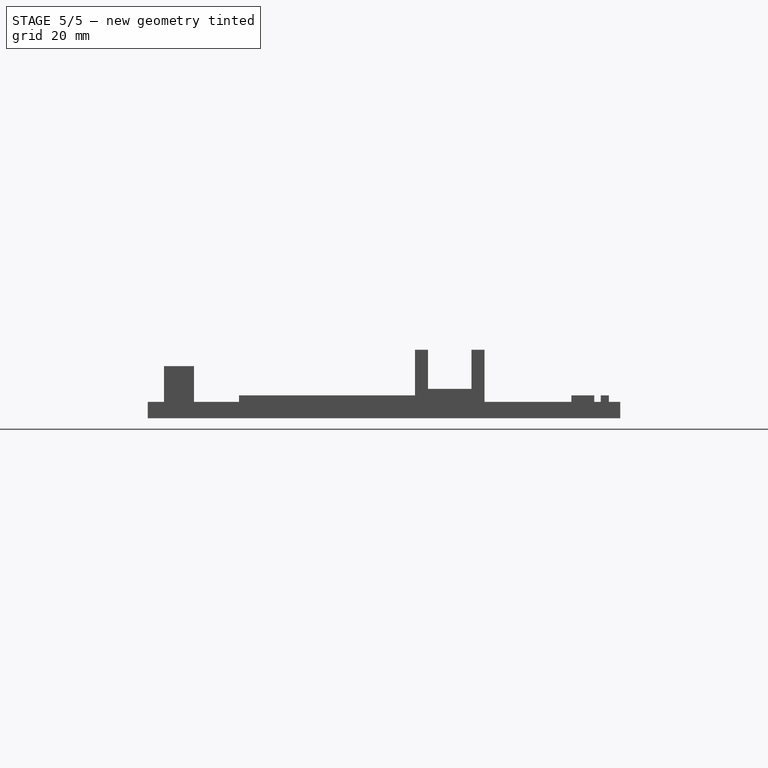
[diagram: stage 5 of 5 — right view after this stage's code; geometry added in this stage tinted green]
FEATURE [PartDesign::LinearPattern] LinearPattern006
  Length = 36
  Occurrences = 4
  Reversed = true
  StdDirection = X
FEATURE [PartDesign::Mirrored] Mirrored004
  StdMirrorPlane = YZ
FEATURE [PartDesign::MultiTransform] MultiTransform005
  Originals = -> [Pocket006]
  Transformations = -> [LinearPattern006,Mirrored004]
FEATURE [Sketcher::SketchObject] Sketch015
  ExternalGeometry = -> [MultiTransform005]
  Placement = pos=(0,-67.5,0) rot=(1,0,0;1.5708rad)
  Support = -> MultiTransform005 [Face61]
  sketch-geometry (2):
    g0: Circle CenterX=-60 CenterY=10.5 CenterZ=0 NormalX=0 NormalY=0 NormalZ=1 Radius=2
    g1: LineSegment [constr] StartX=-60 StartY=10.5 StartZ=0 EndX=-65 EndY=10.5 EndZ=0
  constraints (5):
    c: Coincident(g1,g0)
    c: Horizontal(g1)
    c: Symmetric(g-3,g-3,g1)
    c: DistanceX(g1) = -5
    c: Radius(g0) = 2
FEATURE [PartDesign::Pocket] Pocket007
  Length = 10
  Sketch = -> Sketch015
  Type = 0
FEATURE [PartDesign::LinearPattern] LinearPattern007
  Direction = -> Pocket007 [Edge78]
  Length = 120
  Occurrences = 3
  Originals = -> [Pocket007]
  Reversed = true
FEATURE [Sketcher::SketchObject] Sketch016
  ExternalGeometry = -> [LinearPattern007]
  Placement = pos=(0,-67.5,0) rot=(1,0,0;1.5708rad)
  Support = -> LinearPattern007 [Face61]
  sketch-geometry (1):
    g0: Circle CenterX=-60 CenterY=10.5 CenterZ=0 NormalX=0 NormalY=0 NormalZ=1 Radius=4
  constraints (2):
    c: Coincident(g0,g-3)
    c: Radius(g0) = 4
FEATURE [PartDesign::Pocket] Pocket008
  Length = 4.4
  Sketch = -> Sketch016
  Type = 0
FEATURE [PartDesign::LinearPattern] LinearPattern008
  Direction = -> Pocket008 [Edge258]
  Length = 120
  Occurrences = 3
  Originals = -> [Pocket008]
  Reversed = true
FEATURE [Part::Feature] LinearPattern008001  label="PartRefine"
  shape: bbox 170 x 145 x 21 mm, 153 faces (baked)
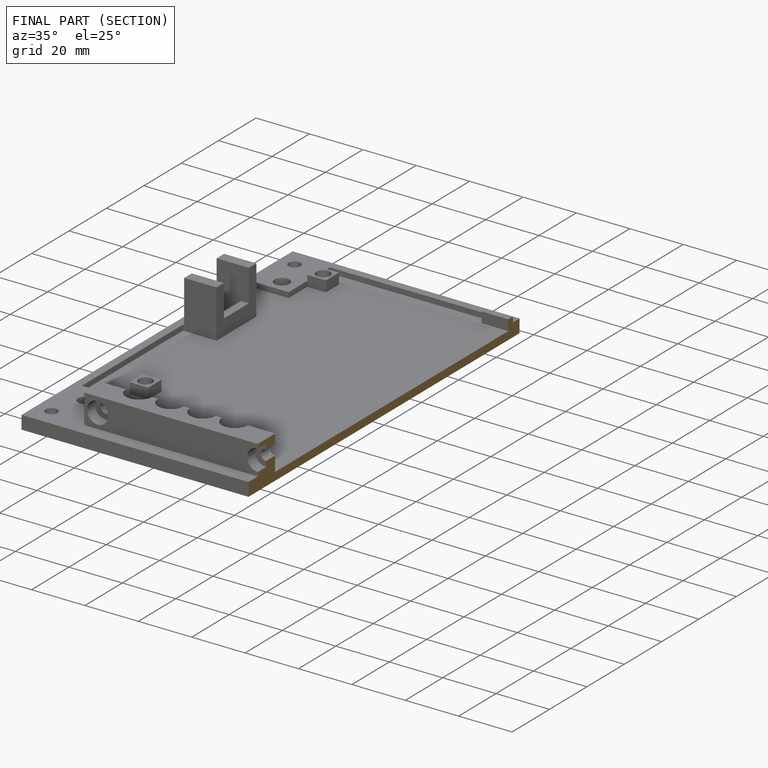
[diagram: finished part — half-section view (interior)]
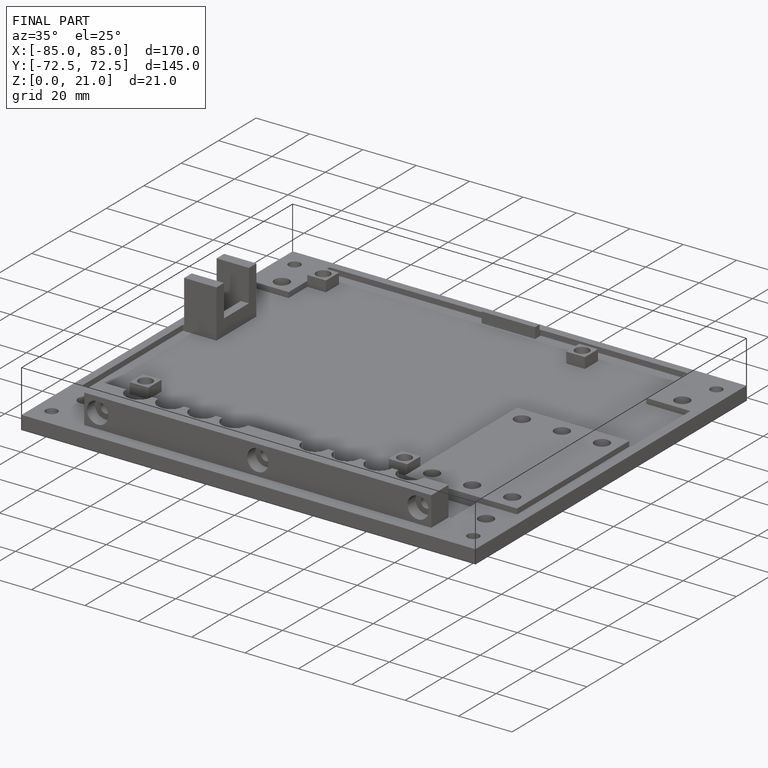
[diagram: finished part — iso view with bounding-box wireframe]
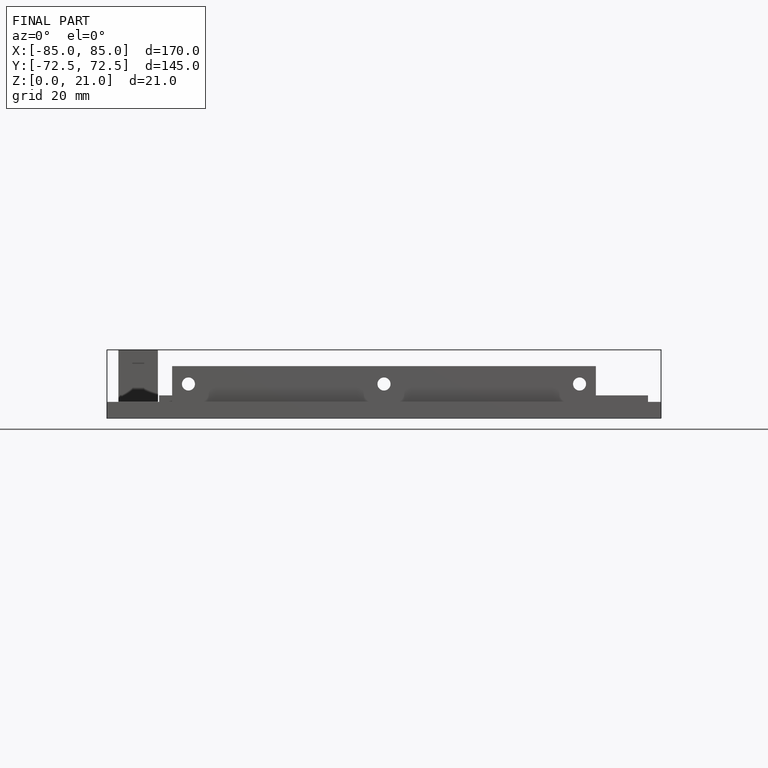
[diagram: finished part — front view with bounding-box wireframe]
